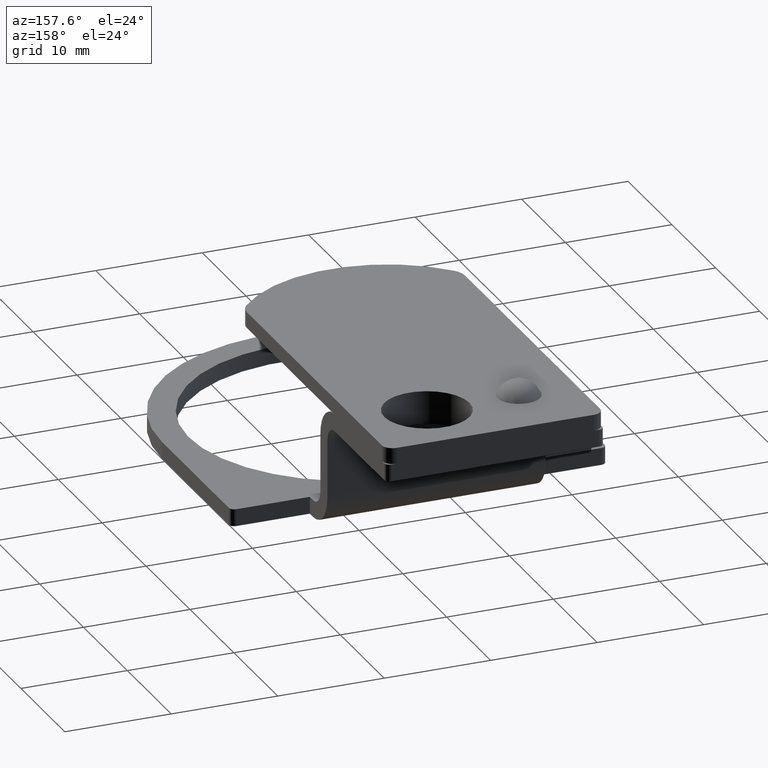
[diagram: clean part render]
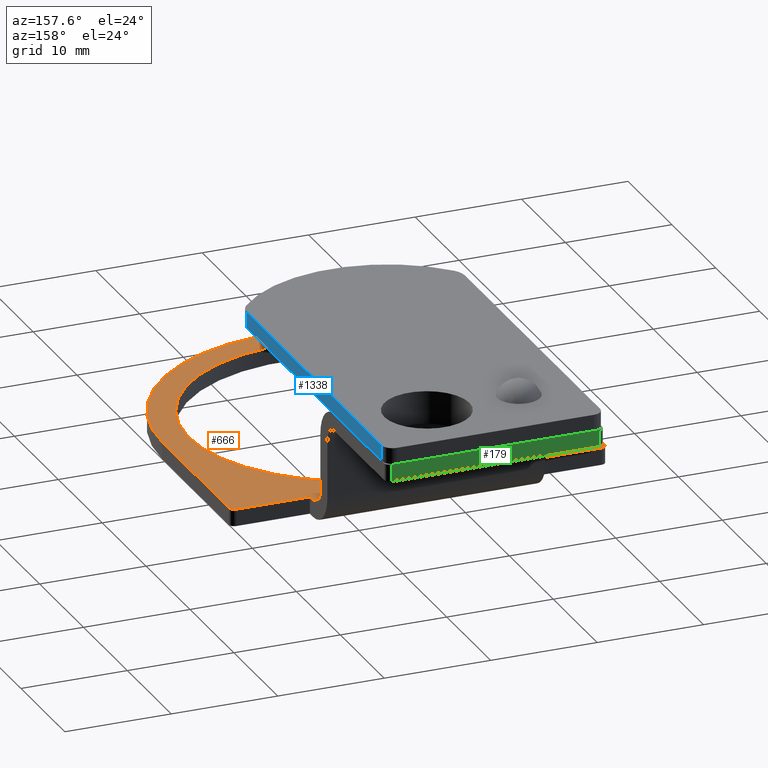
[diagram: same view with three faces highlighted in distinct colors, each labeled with its STEP entity id]
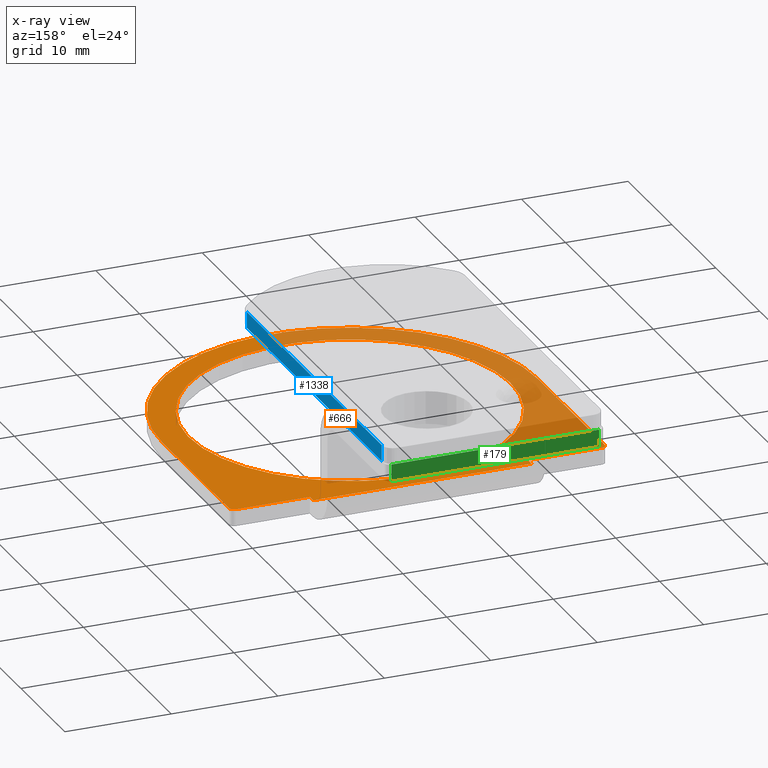
[diagram: x-ray of the same camera — body ghosted, the three highlighted faces saturated]
A machine part, auxiliary view with three faces highlighted in distinct colors.
The next image is the same camera in x-ray (body ghosted, the three faces saturated) — at least one of them is partly hidden behind the body in this view.
Their STEP definitions:

[orange] entity #666 — the highlighted planar face has unit normal (0, 0, 1).
#292=CARTESIAN_POINT('',(13.405585628369575,-2.141989947243079,1.600000000000000));
#293=VERTEX_POINT('',#292);
#301=CARTESIAN_POINT('',(13.405585628369575,-2.941989947243080,1.600000000000001));
#302=VERTEX_POINT('',#301);
#303=CARTESIAN_POINT('',(13.405585628369575,-2.941989947243080,1.600000000000001));
#304=DIRECTION('',(0.0,1.0,0.0));
#305=VECTOR('',#304,0.800000000000000);
#306=LINE('',#303,#305);
#307=EDGE_CURVE('',#302,#293,#306,.T.);
#365=CARTESIAN_POINT('',(20.305585628369588,-2.941989947243080,1.600000000000000));
#366=VERTEX_POINT('',#365);
#367=CARTESIAN_POINT('',(20.805585628369588,-3.441989947243080,1.600000000000000));
#368=VERTEX_POINT('',#367);
#369=CARTESIAN_POINT('',(20.305585628369588,-3.441989947243079,1.600000000000000));
#370=DIRECTION('',(0.0,0.0,-1.0));
#371=DIRECTION('',(0.707106781186546,0.707106781186549,0.0));
#372=AXIS2_PLACEMENT_3D('',#369,#370,#371);
#373=CIRCLE('',#372,0.500000000000000);
#374=EDGE_CURVE('',#366,#368,#373,.T.);
#415=CARTESIAN_POINT('',(20.305585628369588,-2.941989947243080,1.600000000000000));
#416=DIRECTION('',(-1.0,0.0,0.0));
#417=VECTOR('',#416,6.900000000000013);
#418=LINE('',#415,#417);
#419=EDGE_CURVE('',#366,#302,#418,.T.);
#532=CARTESIAN_POINT('',(-14.494414371630416,-3.441989947243079,1.600000000000000));
#533=VERTEX_POINT('',#532);
#540=CARTESIAN_POINT('',(-13.994414371630416,-2.941989947243080,1.600000000000000));
#541=VERTEX_POINT('',#540);
#542=CARTESIAN_POINT('',(-13.994414371630416,-3.441989947243079,1.600000000000000));
#543=DIRECTION('',(0.0,0.0,-1.0));
#544=DIRECTION('',(-0.707106781186546,0.707106781186549,0.0));
#545=AXIS2_PLACEMENT_3D('',#542,#543,#544);
#546=CIRCLE('',#545,0.500000000000000);
#547=EDGE_CURVE('',#533,#541,#546,.T.);
#564=CARTESIAN_POINT('',(-7.094414371630422,-2.941989947243080,1.600000000000001));
#565=VERTEX_POINT('',#564);
#566=CARTESIAN_POINT('',(-7.094414371630422,-2.941989947243080,1.600000000000001));
#567=DIRECTION('',(-1.0,0.0,0.0));
#568=VECTOR('',#567,6.899999999999994);
#569=LINE('',#566,#568);
#570=EDGE_CURVE('',#565,#541,#569,.T.);
#582=CARTESIAN_POINT('',(3.155585628369584,-14.771048569199149,1.600000000000000));
#583=DIRECTION('',(0.0,0.0,1.0));
#584=DIRECTION('',(1.0,0.0,0.0));
#585=AXIS2_PLACEMENT_3D('',#582,#583,#584);
#586=PLANE('',#585);
#587=ORIENTED_EDGE('',*,*,#374,.F.);
#588=ORIENTED_EDGE('',*,*,#419,.T.);
#589=ORIENTED_EDGE('',*,*,#307,.T.);
#590=CARTESIAN_POINT('',(-7.094414371630422,-2.141989947243079,1.600000000000000));
#591=VERTEX_POINT('',#590);
#592=CARTESIAN_POINT('',(13.405585628369575,-2.141989947243079,1.600000000000000));
#593=DIRECTION('',(-1.0,0.0,0.0));
#594=VECTOR('',#593,20.499999999999996);
#595=LINE('',#592,#594);
#596=EDGE_CURVE('',#293,#591,#595,.T.);
#597=ORIENTED_EDGE('',*,*,#596,.T.);
#598=CARTESIAN_POINT('',(-7.094414371630422,-2.141989947243079,1.600000000000000));
#599=DIRECTION('',(0.0,-1.0,0.0));
#600=VECTOR('',#599,0.800000000000000);
#601=LINE('',#598,#600);
#602=EDGE_CURVE('',#591,#565,#601,.T.);
#603=ORIENTED_EDGE('',*,*,#602,.T.);
#604=ORIENTED_EDGE('',*,*,#570,.T.);
#605=ORIENTED_EDGE('',*,*,#547,.F.);
#606=CARTESIAN_POINT('',(-14.494414371630416,-18.691989947243087,1.600000000000000));
#607=VERTEX_POINT('',#606);
#608=CARTESIAN_POINT('',(-14.494414371630416,-18.691989947243087,1.600000000000000));
#609=DIRECTION('',(0.0,1.0,0.0));
#610=VECTOR('',#609,15.250000000000007);
#611=LINE('',#608,#610);
#612=EDGE_CURVE('',#607,#533,#611,.T.);
#613=ORIENTED_EDGE('',*,*,#612,.F.);
#614=CARTESIAN_POINT('',(20.805585628369588,-18.691989947243083,1.600000000000000));
#615=VERTEX_POINT('',#614);
#616=CARTESIAN_POINT('',(3.155585628369584,-18.691989947243083,1.600000000000000));
#617=DIRECTION('',(0.0,0.0,-1.0));
#618=DIRECTION('',(-1.0,0.0,0.0));
#619=AXIS2_PLACEMENT_3D('',#616,#617,#618);
#620=CIRCLE('',#619,17.649999999999999);
#621=EDGE_CURVE('',#615,#607,#620,.T.);
#622=ORIENTED_EDGE('',*,*,#621,.F.);
#623=CARTESIAN_POINT('',(20.805585628369588,-3.441989947243080,1.600000000000000));
#624=DIRECTION('',(0.0,-1.0,0.0));
#625=VECTOR('',#624,15.250000000000004);
#626=LINE('',#623,#625);
#627=EDGE_CURVE('',#368,#615,#626,.T.);
#628=ORIENTED_EDGE('',*,*,#627,.F.);
#629=EDGE_LOOP('',(#587,#588,#589,#597,#603,#604,#605,#613,#622,#628));
#630=FACE_OUTER_BOUND('',#629,.T.);
#631=CARTESIAN_POINT('',(1.405585628369576,-3.668570729235486,1.600000000000000));
#632=VERTEX_POINT('',#631);
#633=CARTESIAN_POINT('',(1.405585628369576,-4.566989947243085,1.600000000000000));
#634=VERTEX_POINT('',#633);
#635=CARTESIAN_POINT('',(1.405585628369576,-3.668570729235486,1.600000000000000));
#636=DIRECTION('',(0.0,-1.0,0.0));
#637=VECTOR('',#636,0.898419218007599);
#638=LINE('',#635,#637);
#639=EDGE_CURVE('',#632,#634,#638,.T.);
#640=ORIENTED_EDGE('',*,*,#639,.T.);
#641=CARTESIAN_POINT('',(4.905585628369576,-4.566989947243082,1.600000000000000));
#642=VERTEX_POINT('',#641);
#643=CARTESIAN_POINT('',(1.405585628369576,-4.566989947243085,1.600000000000000));
#644=DIRECTION('',(1.0,0.0,0.0));
#645=VECTOR('',#644,3.500000000000000);
#646=LINE('',#643,#645);
#647=EDGE_CURVE('',#634,#642,#646,.T.);
#648=ORIENTED_EDGE('',*,*,#647,.T.);
#649=CARTESIAN_POINT('',(4.905585628369576,-3.668570729235484,1.600000000000000));
#650=VERTEX_POINT('',#649);
#651=CARTESIAN_POINT('',(4.905585628369576,-4.566989947243082,1.600000000000000));
#652=DIRECTION('',(0.0,1.0,0.0));
#653=VECTOR('',#652,0.898419218007597);
#654=LINE('',#651,#653);
#655=EDGE_CURVE('',#642,#650,#654,.T.);
#656=ORIENTED_EDGE('',*,*,#655,.T.);
#657=CARTESIAN_POINT('',(3.155585628369584,-18.691989947243083,1.600000000000000));
#658=DIRECTION('',(0.0,0.0,-1.0));
#659=DIRECTION('',(-0.115702479338844,0.993283915240172,0.0));
#660=AXIS2_PLACEMENT_3D('',#657,#658,#659);
#661=CIRCLE('',#660,15.125000000000002);
#662=EDGE_CURVE('',#650,#632,#661,.T.);
#663=ORIENTED_EDGE('',*,*,#662,.T.);
#664=EDGE_LOOP('',(#640,#648,#656,#663));
#665=FACE_BOUND('',#664,.T.);
#666=ADVANCED_FACE('',(#630,#665),#586,.T.);

[blue] entity #1338 — the highlighted planar face has unit normal (1, 0, 0).
#1102=CARTESIAN_POINT('',(17.590537004942469,3.195594190789063,1.500000000000000));
#1103=VERTEX_POINT('',#1102);
#1111=CARTESIAN_POINT('',(17.590537004942469,3.195594190789063,0.0));
#1112=VERTEX_POINT('',#1111);
#1113=CARTESIAN_POINT('',(17.590537004942469,3.195594190789063,1.500000000000000));
#1114=DIRECTION('',(0.0,0.0,-1.0));
#1115=VECTOR('',#1114,1.500000000000000);
#1116=LINE('',#1113,#1115);
#1117=EDGE_CURVE('',#1103,#1112,#1116,.T.);
#1174=CARTESIAN_POINT('',(17.590537004942473,-27.580221914638557,0.0));
#1175=VERTEX_POINT('',#1174);
#1176=CARTESIAN_POINT('',(17.590537004942469,3.195594190789063,0.0));
#1177=DIRECTION('',(0.0,-1.0,0.0));
#1178=VECTOR('',#1177,30.775816105427619);
#1179=LINE('',#1176,#1178);
#1180=EDGE_CURVE('',#1112,#1175,#1179,.T.);
#1315=CARTESIAN_POINT('',(17.590537004942469,4.195594190789063,0.0));
#1316=DIRECTION('',(1.0,0.0,0.0));
#1317=DIRECTION('',(0.0,0.0,-1.0));
#1318=AXIS2_PLACEMENT_3D('',#1315,#1316,#1317);
#1319=PLANE('',#1318);
#1320=ORIENTED_EDGE('',*,*,#1117,.F.);
#1321=CARTESIAN_POINT('',(17.590537004942473,-27.580221914638557,1.500000000000000));
#1322=VERTEX_POINT('',#1321);
#1323=CARTESIAN_POINT('',(17.590537004942469,3.195594190789063,1.500000000000000));
#1324=DIRECTION('',(0.0,-1.0,0.0));
#1325=VECTOR('',#1324,30.775816105427619);
#1326=LINE('',#1323,#1325);
#1327=EDGE_CURVE('',#1103,#1322,#1326,.T.);
#1328=ORIENTED_EDGE('',*,*,#1327,.T.);
#1329=CARTESIAN_POINT('',(17.590537004942473,-27.580221914638557,0.0));
#1330=DIRECTION('',(0.0,0.0,1.0));
#1331=VECTOR('',#1330,1.500000000000000);
#1332=LINE('',#1329,#1331);
#1333=EDGE_CURVE('',#1175,#1322,#1332,.T.);
#1334=ORIENTED_EDGE('',*,*,#1333,.F.);
#1335=ORIENTED_EDGE('',*,*,#1180,.F.);
#1336=EDGE_LOOP('',(#1320,#1328,#1334,#1335));
#1337=FACE_OUTER_BOUND('',#1336,.T.);
#1338=ADVANCED_FACE('',(#1337),#1319,.T.);

[green] entity #179 — the highlighted planar face has unit normal (0, 1, 0).
#114=CARTESIAN_POINT('',(-6.594414371630420,14.458010052756922,11.750000000000004));
#115=VERTEX_POINT('',#114);
#123=CARTESIAN_POINT('',(-6.594414371630420,14.458010052756922,10.150000000000002));
#124=VERTEX_POINT('',#123);
#125=CARTESIAN_POINT('',(-6.594414371630420,14.458010052756922,11.750000000000004));
#126=DIRECTION('',(0.0,0.0,-1.0));
#127=VECTOR('',#126,1.600000000000001);
#128=LINE('',#125,#127);
#129=EDGE_CURVE('',#115,#124,#128,.T.);
#149=CARTESIAN_POINT('',(-7.094414371630422,14.458010052756922,11.750000000000004));
#150=DIRECTION('',(0.0,1.0,0.0));
#151=DIRECTION('',(0.0,0.0,1.0));
#152=AXIS2_PLACEMENT_3D('',#149,#150,#151);
#153=PLANE('',#152);
#154=ORIENTED_EDGE('',*,*,#129,.F.);
#155=CARTESIAN_POINT('',(12.905585628369575,14.458010052756922,11.750000000000004));
#156=VERTEX_POINT('',#155);
#157=CARTESIAN_POINT('',(-6.594414371630420,14.458010052756922,11.750000000000004));
#158=DIRECTION('',(1.0,0.0,0.0));
#159=VECTOR('',#158,19.499999999999996);
#160=LINE('',#157,#159);
#161=EDGE_CURVE('',#115,#156,#160,.T.);
#162=ORIENTED_EDGE('',*,*,#161,.T.);
#163=CARTESIAN_POINT('',(12.905585628369575,14.458010052756922,10.150000000000002));
#164=VERTEX_POINT('',#163);
#165=CARTESIAN_POINT('',(12.905585628369575,14.458010052756922,10.150000000000002));
#166=DIRECTION('',(0.0,0.0,1.0));
#167=VECTOR('',#166,1.600000000000001);
#168=LINE('',#165,#167);
#169=EDGE_CURVE('',#164,#156,#168,.T.);
#170=ORIENTED_EDGE('',*,*,#169,.F.);
#171=CARTESIAN_POINT('',(-6.594414371630420,14.458010052756922,10.150000000000002));
#172=DIRECTION('',(1.0,0.0,0.0));
#173=VECTOR('',#172,19.499999999999996);
#174=LINE('',#171,#173);
#175=EDGE_CURVE('',#124,#164,#174,.T.);
#176=ORIENTED_EDGE('',*,*,#175,.F.);
#177=EDGE_LOOP('',(#154,#162,#170,#176));
#178=FACE_OUTER_BOUND('',#177,.T.);
#179=ADVANCED_FACE('',(#178),#153,.T.);